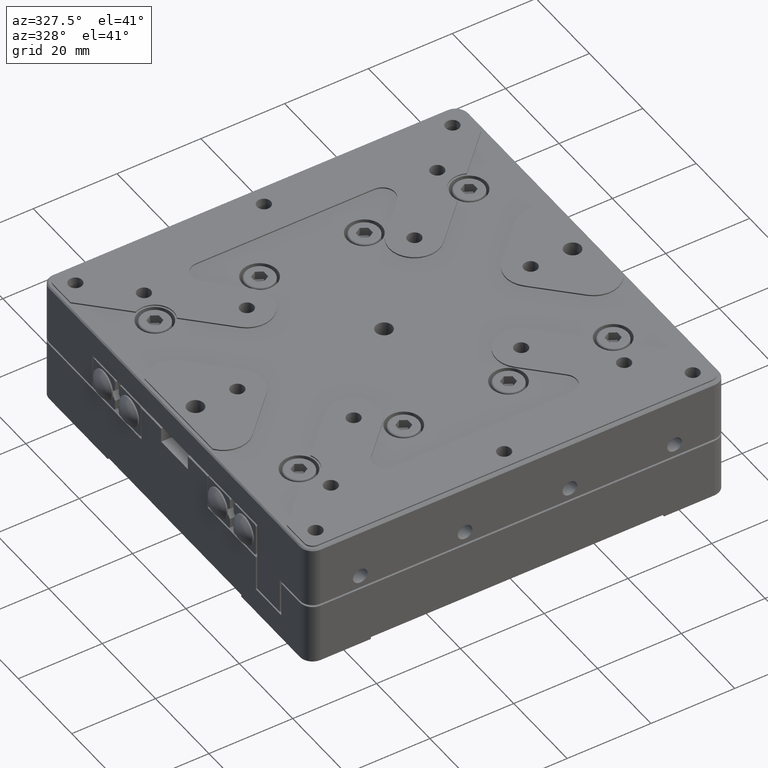
[diagram: clean part render]
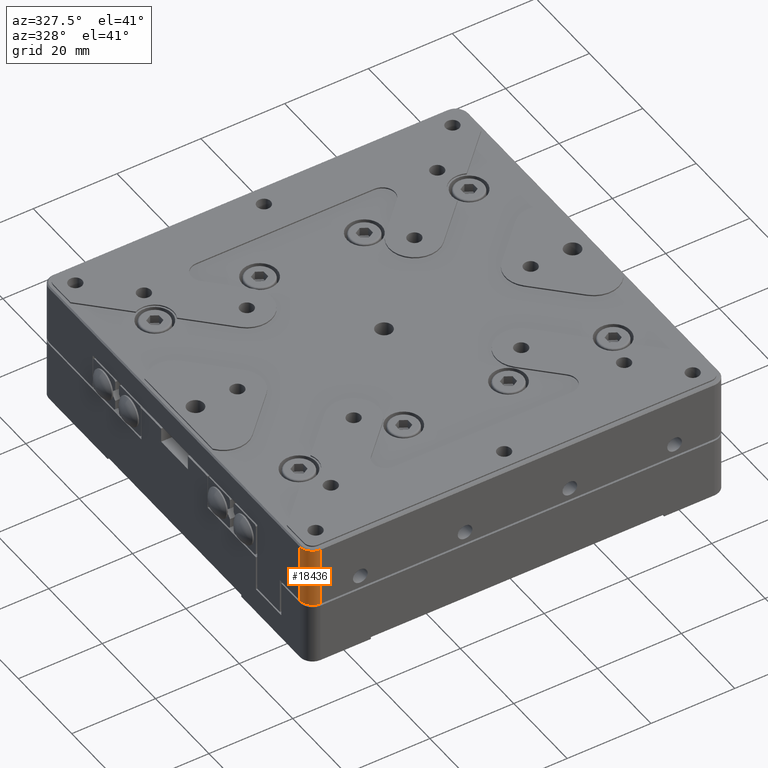
[diagram: same view with one face highlighted and labeled with its STEP entity id]
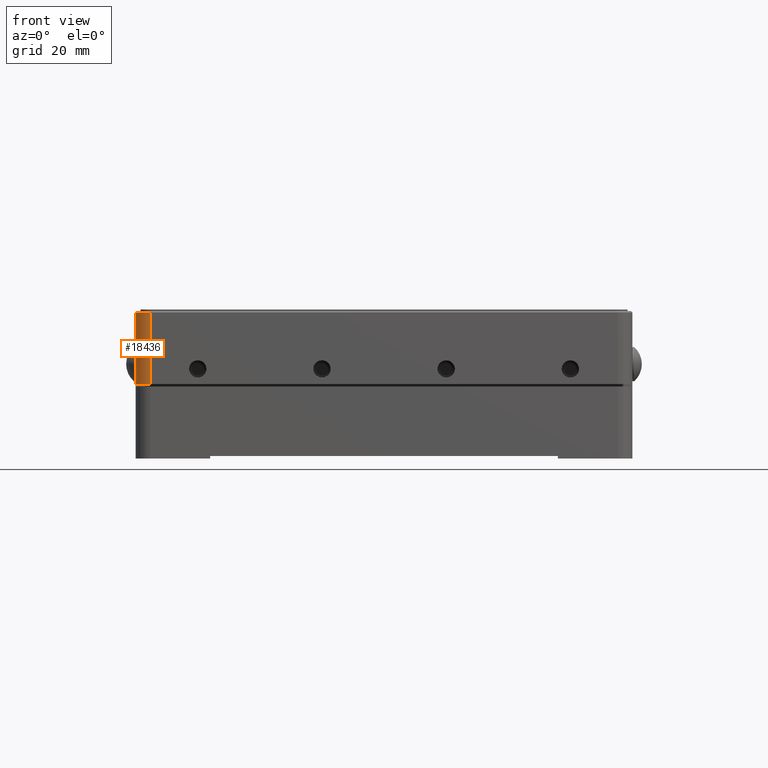
[diagram: same view with one face highlighted and labeled with its STEP entity id]
A machine part, auxiliary view. The second image highlights one B-rep face of the part: STEP entity #18436.
A second angle (front view) of the same face is appended — the face is thin or edge-on in the first view.
In plain terms, the highlighted cylindrical surface (edge-blend (fillet) strip) has radius 3 mm, axis along (0, 0, 1).
Its self-contained STEP definition (entity closure, byte-faithful):
#753 = ORIENTED_EDGE ( 'NONE', *, *, #16939, .T. ) ;
#1199 = ORIENTED_EDGE ( 'NONE', *, *, #19341, .F. ) ;
#1453 = EDGE_CURVE ( 'NONE', #10210, #11977, #26064, .T. ) ;
#2209 = CYLINDRICAL_SURFACE ( 'NONE', #5905, 3.000000000000002665 ) ;
#2627 = DIRECTION ( 'NONE',  ( 0.000000000000000000, 0.000000000000000000, 1.000000000000000000 ) ) ;
#2786 = DIRECTION ( 'NONE',  ( 0.000000000000000000, 0.000000000000000000, -1.000000000000000000 ) ) ;
#4658 = DIRECTION ( 'NONE',  ( 0.000000000000000000, 0.000000000000000000, -1.000000000000000000 ) ) ;
#5905 = AXIS2_PLACEMENT_3D ( 'NONE', #11011, #2627, #10730 ) ;
#6418 = AXIS2_PLACEMENT_3D ( 'NONE', #13726, #4658, #7035 ) ;
#7035 = DIRECTION ( 'NONE',  ( 1.000000000000000000, 0.000000000000000000, 0.000000000000000000 ) ) ;
#7038 = CARTESIAN_POINT ( 'NONE',  ( -47.00000000000000000, -50.00000000000000000, -19.05400000000000205 ) ) ;
#8633 = FACE_OUTER_BOUND ( 'NONE', #26903, .T. ) ;
#9215 = DIRECTION ( 'NONE',  ( -1.000000000000000000, 0.000000000000000000, 0.000000000000000000 ) ) ;
#9563 = CARTESIAN_POINT ( 'NONE',  ( -50.00000000000000000, -46.99999869438499900, 0.5000000000000000000 ) ) ;
#10210 = VERTEX_POINT ( 'NONE', #16034 ) ;
#10730 = DIRECTION ( 'NONE',  ( 1.000000000000000000, 0.000000000000000000, 0.000000000000000000 ) ) ;
#11011 = CARTESIAN_POINT ( 'NONE',  ( -47.00000000000000000, -47.00000000000000000, -19.05400000000000205 ) ) ;
#11203 = CIRCLE ( 'NONE', #17896, 3.000000000000002665 ) ;
#11635 = DIRECTION ( 'NONE',  ( 0.000000000000000000, 0.000000000000000000, 1.000000000000000000 ) ) ;
#11780 = CARTESIAN_POINT ( 'NONE',  ( -49.99999999998860289, -46.99999869438499900, 14.90000000001140101 ) ) ;
#11977 = VERTEX_POINT ( 'NONE', #14982 ) ;
#12966 = VERTEX_POINT ( 'NONE', #11780 ) ;
#13056 = CARTESIAN_POINT ( 'NONE',  ( -50.00000000000000000, -46.99999738876999800, 0.000000000000000000 ) ) ;
#13404 = CARTESIAN_POINT ( 'NONE',  ( -47.00000000000000000, -47.00000000000000000, 14.90000000002282121 ) ) ;
#13485 = VECTOR ( 'NONE', #11635, 1000.000000000000000 ) ;
#13726 = CARTESIAN_POINT ( 'NONE',  ( -47.00000000000000000, -47.00000000000000000, 0.5000000000000000000 ) ) ;
#14702 = VECTOR ( 'NONE', #17251, 1000.000000000000000 ) ;
#14982 = CARTESIAN_POINT ( 'NONE',  ( -47.00000000013289991, -49.99999999997729816, 14.90000000003414016 ) ) ;
#15294 = LINE ( 'NONE', #13056, #14702 ) ;
#15770 = EDGE_CURVE ( 'NONE', #12966, #18997, #15294, .T. ) ;
#15802 = CIRCLE ( 'NONE', #6418, 3.000000000000002665 ) ;
#16034 = CARTESIAN_POINT ( 'NONE',  ( -47.00000000000000000, -50.00000000000000000, 0.5000000000000000000 ) ) ;
#16939 = EDGE_CURVE ( 'NONE', #11977, #12966, #11203, .T. ) ;
#17251 = DIRECTION ( 'NONE',  ( 0.000000000000000000, 0.000000000000000000, -1.000000000000000000 ) ) ;
#17896 = AXIS2_PLACEMENT_3D ( 'NONE', #13404, #2786, #9215 ) ;
#18436 = ADVANCED_FACE ( 'NONE', ( #8633 ), #2209, .T. ) ;
#18997 = VERTEX_POINT ( 'NONE', #9563 ) ;
#19341 = EDGE_CURVE ( 'NONE', #10210, #18997, #15802, .T. ) ;
#21804 = ORIENTED_EDGE ( 'NONE', *, *, #15770, .T. ) ;
#23865 = ORIENTED_EDGE ( 'NONE', *, *, #1453, .T. ) ;
#26064 = LINE ( 'NONE', #7038, #13485 ) ;
#26903 = EDGE_LOOP ( 'NONE', ( #23865, #753, #21804, #1199 ) ) ;